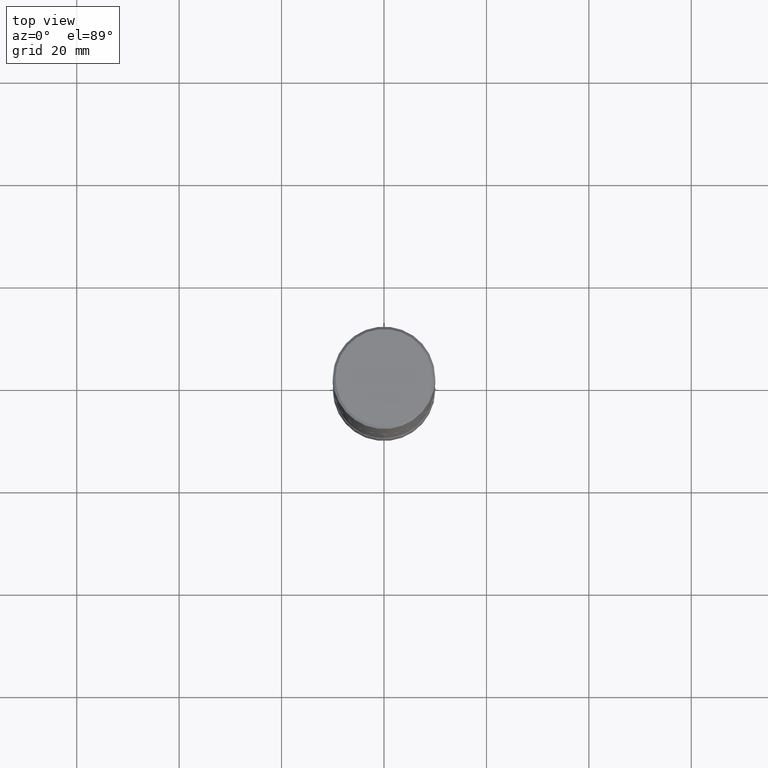
[diagram: clean part render]
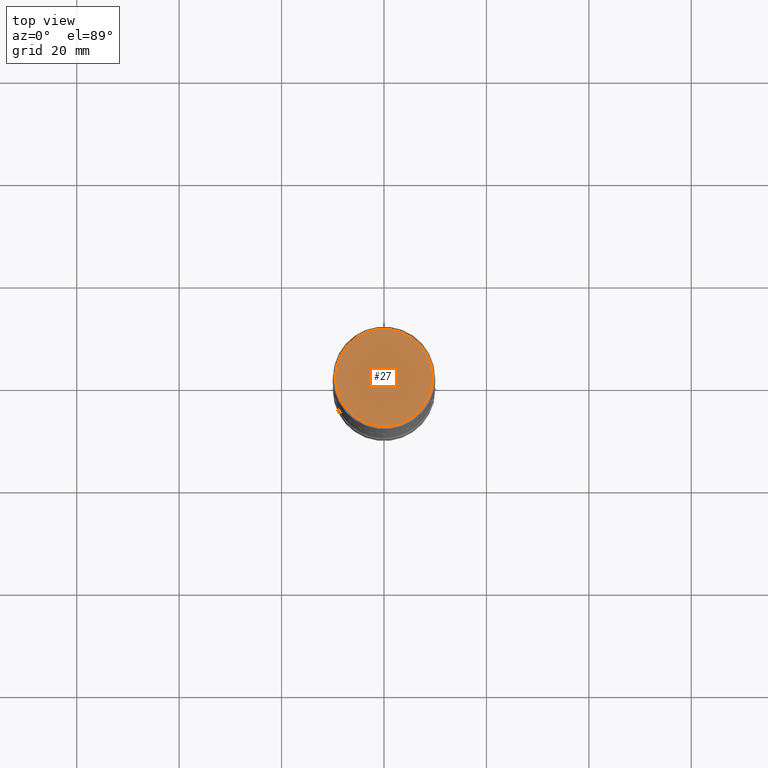
[diagram: same view with one face highlighted and labeled with its STEP entity id]
A machine part, top view. The second image highlights one B-rep face of the part: STEP entity #27.
In plain terms, the highlighted planar face has unit normal (0, -0, -1).
Its self-contained STEP definition (entity closure, byte-faithful):
#27 = ADVANCED_FACE ( 'NONE', ( #380 ), #166, .F. ) ;
#41 = AXIS2_PLACEMENT_3D ( 'NONE', #100, #178, #232 ) ;
#70 = AXIS2_PLACEMENT_3D ( 'NONE', #528, #545, #270 ) ;
#95 = EDGE_LOOP ( 'NONE', ( #247, #557 ) ) ;
#100 = CARTESIAN_POINT ( 'NONE',  ( -2.087702828670435750E-46, 2.980686340760889474E-32, 8.537024980200807150E-18 ) ) ;
#152 = EDGE_CURVE ( 'NONE', #288, #194, #469, .T. ) ;
#166 = PLANE ( 'NONE',  #468 ) ;
#178 = DIRECTION ( 'NONE',  ( -2.445468806185136597E-29, 3.491481338843145583E-15, 1.000000000000000000 ) ) ;
#194 = VERTEX_POINT ( 'NONE', #263 ) ;
#201 = CIRCLE ( 'NONE', #70, 0.3736999999999999766 ) ;
#232 = DIRECTION ( 'NONE',  ( 1.000000000000000000, -6.982962677686266711E-15, 4.876212485538975679E-29 ) ) ;
#247 = ORIENTED_EDGE ( 'NONE', *, *, #152, .T. ) ;
#263 = CARTESIAN_POINT ( 'NONE',  ( 0.3736999999999999766, -2.667287895133368359E-15, 8.537024980219259100E-18 ) ) ;
#268 = CARTESIAN_POINT ( 'NONE',  ( -0.3736999999999999766, 2.644447966039789058E-15, 8.537024980182435319E-18 ) ) ;
#270 = DIRECTION ( 'NONE',  ( 1.000000000000000000, -6.982962677686266711E-15, 4.876212485538975679E-29 ) ) ;
#288 = VERTEX_POINT ( 'NONE', #268 ) ;
#340 = DIRECTION ( 'NONE',  ( 2.438088387897960049E-29, -3.491481338843145188E-15, -1.000000000000000000 ) ) ;
#344 = DIRECTION ( 'NONE',  ( -1.000000000000000000, 6.982962677686265922E-15, -4.876176775795935793E-29 ) ) ;
#380 = FACE_OUTER_BOUND ( 'NONE', #95, .T. ) ;
#468 = AXIS2_PLACEMENT_3D ( 'NONE', #526, #340, #344 ) ;
#469 = CIRCLE ( 'NONE', #41, 0.3736999999999999766 ) ;
#498 = EDGE_CURVE ( 'NONE', #194, #288, #201, .T. ) ;
#526 = CARTESIAN_POINT ( 'NONE',  ( 2.609533152651357409E-15, 0.3736999999999999766, -1.300498063835583011E-15 ) ) ;
#528 = CARTESIAN_POINT ( 'NONE',  ( -2.087702828670435750E-46, 2.980686340760889474E-32, 8.537024980200807150E-18 ) ) ;
#545 = DIRECTION ( 'NONE',  ( -2.445468806185136597E-29, 3.491481338843145583E-15, 1.000000000000000000 ) ) ;
#557 = ORIENTED_EDGE ( 'NONE', *, *, #498, .T. ) ;